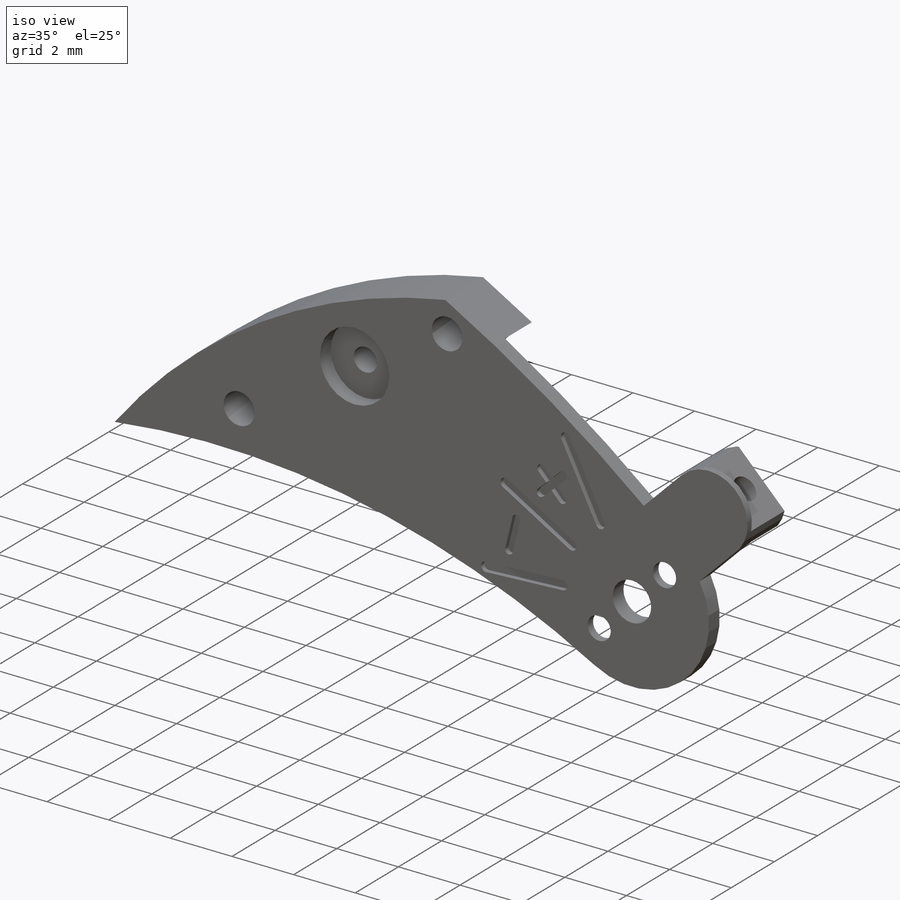
[diagram: iso view]
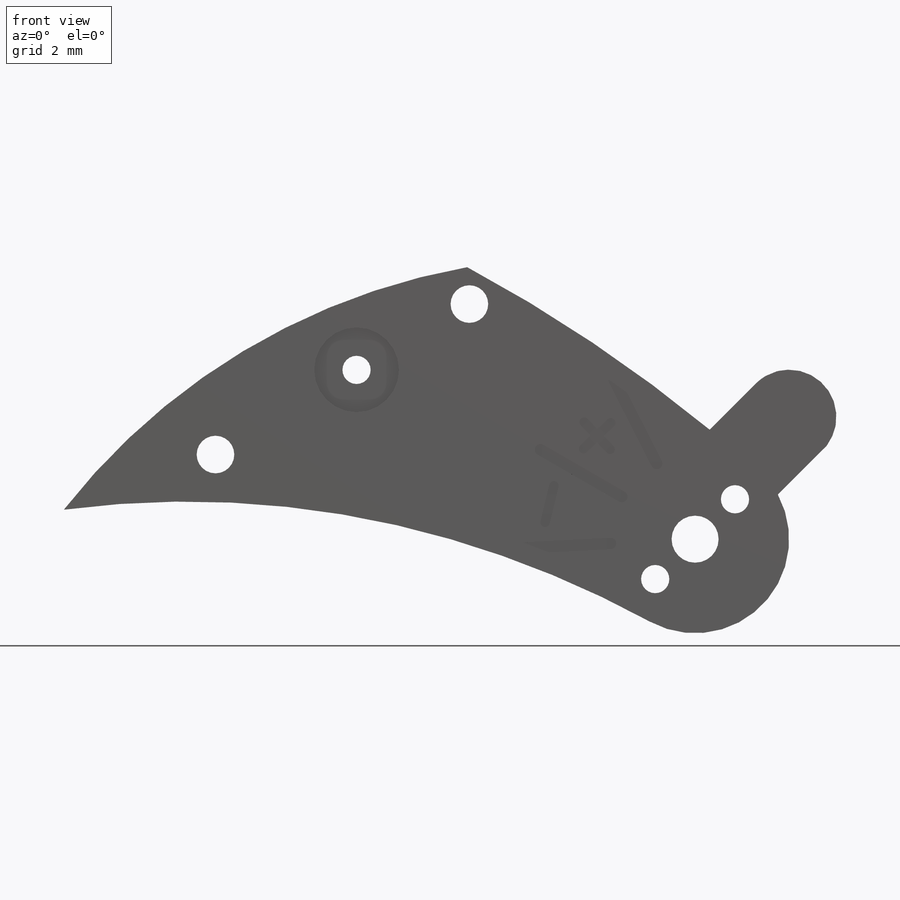
[diagram: front view]
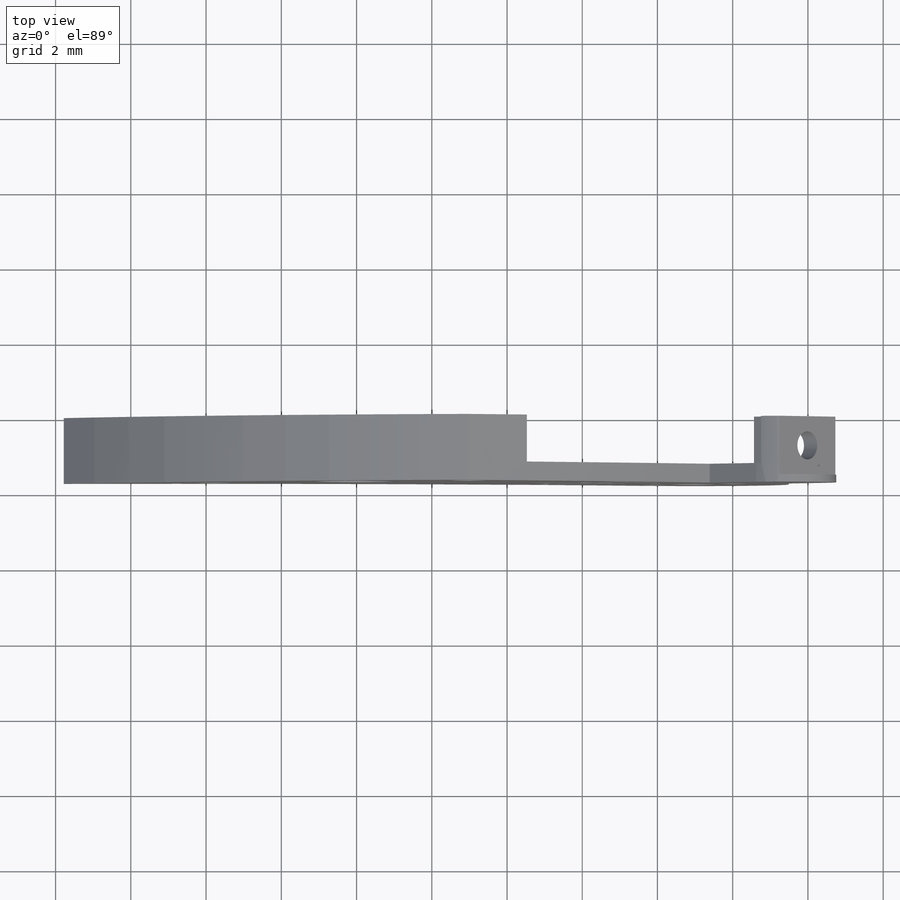
[diagram: top view]
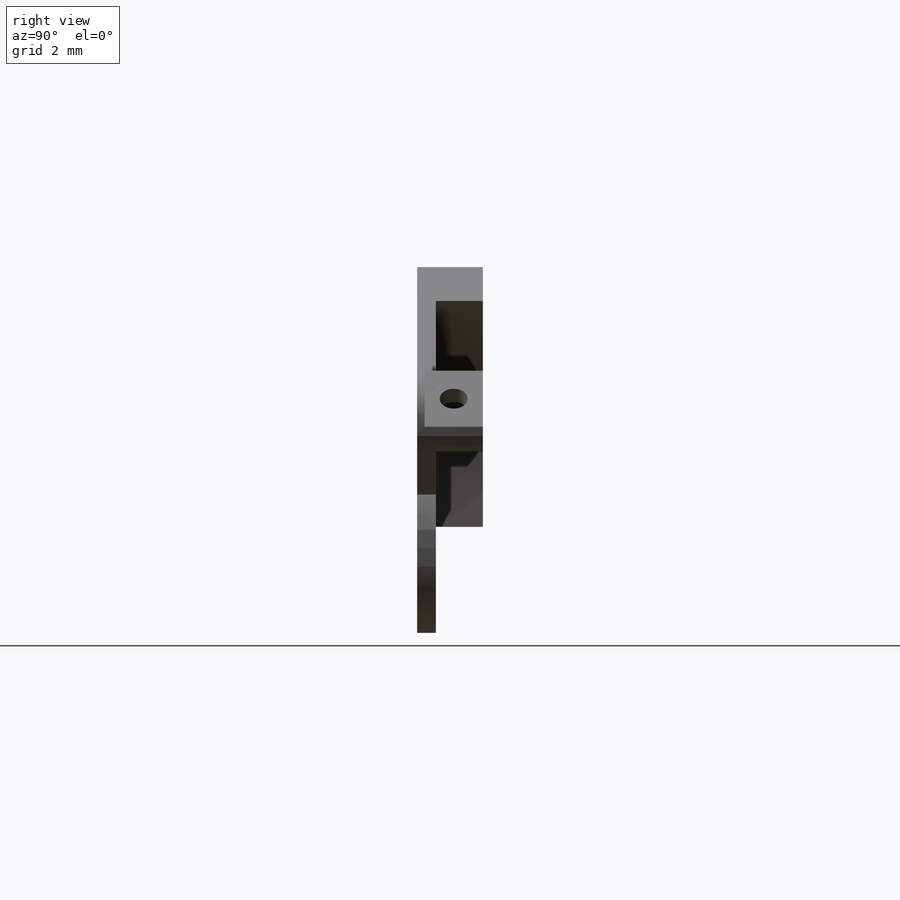
[diagram: right view]
SOLIDWORKS PART (.sldprt)
format: sldprt  version: not decoded by parser v0  size: 503,296 bytes
history: native  units: mm
features: sketch x14, cut_extrude x5, plane x4, thread x4, hole x3, extrude x2, material x1 (+8 scaffold rows collapsed)
feature tree (41):
  scaffold x8  (default folders/planes/origin — collapsed)
  material  "Material <sin especificar>"
  plane  "Alzado"
  plane  "Planta"
  plane  "Vista lateral"
  sketch  "Croquis1"  dims[c1.D2=25.0mm c1.D5=17.5mm c1.D6=40.0mm c1.D9=2.5mm c1.D12=1.25mm c1.D19=1.25mm c1.D13=1.25mm c1.D20=1.0mm c1.D21=1.0mm c1.D1=1.5mm c1.D3=10.5mm c1.D4=14.0mm c1.D7=22.0mm c1.D8=18.0mm c1.D10=10.0mm c1.D11=3.0mm c2.D13=2.5mm c2.D14=1.75mm c2.D15=3.0mm c2.D16=5.5mm c2.D17=13.25mm c2.D18=16.25mm c3.D14=~1.06066mm c4.D14=45.0deg c4.D13=1.75mm c4.D19=2.5mm c4.D22=9.75mm c4.D23=12.25mm]
  extrude  "Saliente-Extruir1"  Depth=1.75mm
  sketch  "Croquis2"  dims[D1=15.5mm]
  cut_extrude  "Cortar-Extruir1"  Depth=1.25mm
  sketch  "Croquis3"  dims[D1=3.25mm D2=0.5mm D3=1.0mm D4=0.75mm D5=0.5mm D6=0.5mm]
  extrude  "Saliente-Extruir2"  Depth=1.25mm
  sketch  "Croquis4"
  cut_extrude  "Cortar-Extruir2"  Depth=0.3mm
  sketch  "Croquis5"  dims[D2=1.5mm D3=1.5mm D1=3.0mm]
  cut_extrude  "Cortar-Extruir3"  Depth=0.25mm
  sketch  "Croquis6"  dims[D1=0.5mm]
  sketch  "Croquis7"  dims[D1=2.25mm D2=6.0mm D3=14.5mm]
  cut_extrude  "Cortar-Extruir4"  Depth=0.5mm
  plane  "Plano1"
  sketch  "Croquis8"  dims[c1.D1=~4.798287mm c2.D1=30.0deg c2.D2=2.25mm c2.D3=2.25mm c2.D4=~2.135475mm c3.D4=33.0deg c3.D5=~6.548008mm c4.D5=33.0deg c4.D6=2.25mm c4.D7=2.5mm c4.D8=2.5mm c4.D9=2.5mm c4.D10=0.3mm c4.D11=0.3mm c4.D12=0.3mm c4.D13=~4.924681mm c5.D13=16.5deg c5.D14=~5.670741mm c6.D14=16.5deg c6.D15=0.25mm c6.D16=0.25mm c6.D17=1.0mm c6.D18=1.0mm c6.D19=0.25mm c6.D20=1.0mm]
  cut_extrude  "Cortar-Extruir5"  Depth=0.15mm
  hole  "M1x0.25 Tapped Hole1"  Depth=0.25mm  [1 undecoded]
  sketch  "Croquis10"
  sketch  "Croquis9"  dims[hole-wizard template sketch: 61 standard entries collapsed; hole parameters above]
  thread  "Rosca de taladro1"  Diameter=1mm  [1 undecoded]
  thread  "Rosca de taladro2"  Diameter=1mm  [1 undecoded]
  hole  "M1x0.25 Tapped Hole2"  Depth=1.25mm  [1 undecoded]
  sketch  "Croquis12"
  sketch  "Croquis11"  dims[hole-wizard template sketch: 61 standard entries collapsed; hole parameters above]
  thread  "Rosca de taladro3"  Diameter=1mm  [1 undecoded]
  hole  "M1x0.25 Tapped Hole3"  [1 undecoded]
  sketch  "Croquis14"
  thread  "Rosca de taladro4"  Diameter=1mm  [1 undecoded]
  sketch  "Croquis13"  dims[hole-wizard template sketch: 60 standard entries collapsed; hole parameters kept: c18.Profundidad de perforador para roscar hasta el siguiente=0.5mm]
decode coverage: 23 of 28 modeling features carry decoded parameters
note: ~ marks probable driven/reference dimensions
note: 7 parameter values undecoded
summary: no parameter record found for 3 features
note: suppression state not decoded; provenance and decode notes live in map.json
